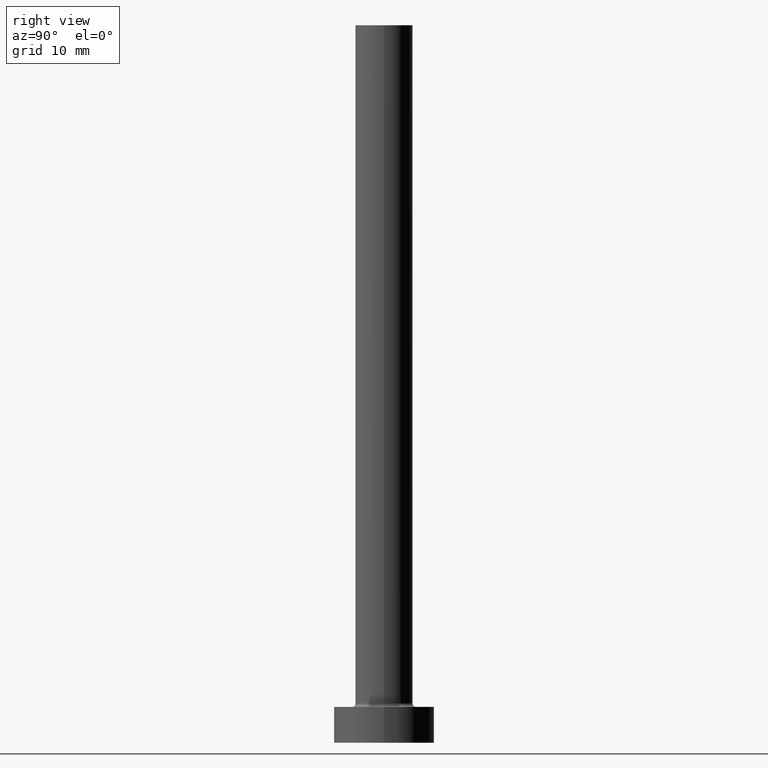
[diagram: clean part render]
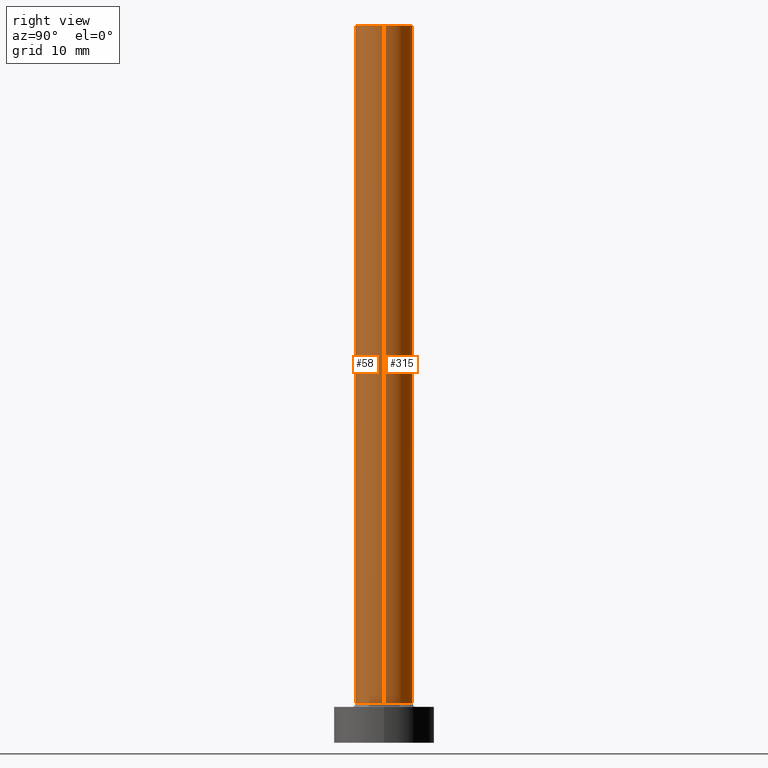
[diagram: same view with one multi-face feature highlighted, each face labeled with its STEP entity id]
A machine part, right view. The highlighted faces form ONE feature: a constant-radius fillet chain: 2 tangent blend faces with common blend radius 4 mm. The faces share edges in the B-rep.
Their STEP definitions:
[1] entity #58 (Cylinder):
#10 = VERTEX_POINT ( 'NONE', #49 ) ;
#14 = CARTESIAN_POINT ( 'NONE',  ( 0.000000000000000000, 0.000000000000000000, 5.500000000000005329 ) ) ;
#22 = ORIENTED_EDGE ( 'NONE', *, *, #360, .T. ) ;
#45 = DIRECTION ( 'NONE',  ( 1.000000000000000000, 0.000000000000000000, 0.000000000000000000 ) ) ;
#49 = CARTESIAN_POINT ( 'NONE',  ( -4.000000000000000000, 0.000000000000000000, 5.500000000000005329 ) ) ;
#58 = ADVANCED_FACE ( 'NONE', ( #283 ), #61, .T. ) ;
#61 = CYLINDRICAL_SURFACE ( 'NONE', #346, 4.000000000000000000 ) ;
#67 = CARTESIAN_POINT ( 'NONE',  ( 4.000000000000000000, 4.898587196589412829E-16, 100.0000000000000000 ) ) ;
#76 = ORIENTED_EDGE ( 'NONE', *, *, #289, .F. ) ;
#85 = CARTESIAN_POINT ( 'NONE',  ( -4.000000000000000000, 0.000000000000000000, 100.0000000000000000 ) ) ;
#89 = VERTEX_POINT ( 'NONE', #67 ) ;
#92 = ORIENTED_EDGE ( 'NONE', *, *, #369, .F. ) ;
#100 = DIRECTION ( 'NONE',  ( -0.000000000000000000, -0.000000000000000000, -1.000000000000000000 ) ) ;
#102 = VECTOR ( 'NONE', #274, 1000.000000000000000 ) ;
#123 = CARTESIAN_POINT ( 'NONE',  ( 4.000000000000000000, 4.898587196589412829E-16, 100.0000000000000000 ) ) ;
#134 = CARTESIAN_POINT ( 'NONE',  ( 0.000000000000000000, 0.000000000000000000, 100.0000000000000000 ) ) ;
#146 = AXIS2_PLACEMENT_3D ( 'NONE', #411, #332, #405 ) ;
#156 = DIRECTION ( 'NONE',  ( -0.000000000000000000, -0.000000000000000000, -1.000000000000000000 ) ) ;
#180 = VECTOR ( 'NONE', #156, 1000.000000000000000 ) ;
#188 = CIRCLE ( 'NONE', #146, 4.000000000000000000 ) ;
#192 = DIRECTION ( 'NONE',  ( 0.000000000000000000, 0.000000000000000000, 1.000000000000000000 ) ) ;
#215 = VERTEX_POINT ( 'NONE', #85 ) ;
#251 = EDGE_LOOP ( 'NONE', ( #76, #92, #22, #275 ) ) ;
#261 = CARTESIAN_POINT ( 'NONE',  ( -4.000000000000000000, 0.000000000000000000, 100.0000000000000000 ) ) ;
#274 = DIRECTION ( 'NONE',  ( -0.000000000000000000, -0.000000000000000000, -1.000000000000000000 ) ) ;
#275 = ORIENTED_EDGE ( 'NONE', *, *, #310, .T. ) ;
#280 = AXIS2_PLACEMENT_3D ( 'NONE', #14, #192, #45 ) ;
#282 = CARTESIAN_POINT ( 'NONE',  ( 4.000000000000000000, 4.898587196589412829E-16, 5.500000000000005329 ) ) ;
#283 = FACE_OUTER_BOUND ( 'NONE', #251, .T. ) ;
#289 = EDGE_CURVE ( 'NONE', #89, #448, #450, .T. ) ;
#310 = EDGE_CURVE ( 'NONE', #10, #448, #312, .T. ) ;
#312 = CIRCLE ( 'NONE', #280, 4.000000000000000000 ) ;
#332 = DIRECTION ( 'NONE',  ( 0.000000000000000000, 0.000000000000000000, 1.000000000000000000 ) ) ;
#346 = AXIS2_PLACEMENT_3D ( 'NONE', #134, #100, #349 ) ;
#349 = DIRECTION ( 'NONE',  ( -1.000000000000000000, 0.000000000000000000, 0.000000000000000000 ) ) ;
#360 = EDGE_CURVE ( 'NONE', #215, #10, #436, .T. ) ;
#369 = EDGE_CURVE ( 'NONE', #215, #89, #188, .T. ) ;
#405 = DIRECTION ( 'NONE',  ( 1.000000000000000000, 0.000000000000000000, 0.000000000000000000 ) ) ;
#411 = CARTESIAN_POINT ( 'NONE',  ( 0.000000000000000000, 0.000000000000000000, 100.0000000000000000 ) ) ;
#436 = LINE ( 'NONE', #261, #180 ) ;
#448 = VERTEX_POINT ( 'NONE', #282 ) ;
#450 = LINE ( 'NONE', #123, #102 ) ;
[2] entity #315 (Cylinder):
#10 = VERTEX_POINT ( 'NONE', #49 ) ;
#20 = DIRECTION ( 'NONE',  ( 1.000000000000000000, 0.000000000000000000, 0.000000000000000000 ) ) ;
#24 = DIRECTION ( 'NONE',  ( 0.000000000000000000, 0.000000000000000000, 1.000000000000000000 ) ) ;
#26 = AXIS2_PLACEMENT_3D ( 'NONE', #50, #24, #20 ) ;
#49 = CARTESIAN_POINT ( 'NONE',  ( -4.000000000000000000, 0.000000000000000000, 5.500000000000005329 ) ) ;
#50 = CARTESIAN_POINT ( 'NONE',  ( 0.000000000000000000, 0.000000000000000000, 5.500000000000005329 ) ) ;
#67 = CARTESIAN_POINT ( 'NONE',  ( 4.000000000000000000, 4.898587196589412829E-16, 100.0000000000000000 ) ) ;
#85 = CARTESIAN_POINT ( 'NONE',  ( -4.000000000000000000, 0.000000000000000000, 100.0000000000000000 ) ) ;
#89 = VERTEX_POINT ( 'NONE', #67 ) ;
#102 = VECTOR ( 'NONE', #274, 1000.000000000000000 ) ;
#104 = EDGE_LOOP ( 'NONE', ( #222, #311, #416, #201 ) ) ;
#123 = CARTESIAN_POINT ( 'NONE',  ( 4.000000000000000000, 4.898587196589412829E-16, 100.0000000000000000 ) ) ;
#128 = CARTESIAN_POINT ( 'NONE',  ( 0.000000000000000000, 0.000000000000000000, 100.0000000000000000 ) ) ;
#154 = DIRECTION ( 'NONE',  ( -0.000000000000000000, -0.000000000000000000, -1.000000000000000000 ) ) ;
#156 = DIRECTION ( 'NONE',  ( -0.000000000000000000, -0.000000000000000000, -1.000000000000000000 ) ) ;
#163 = DIRECTION ( 'NONE',  ( 1.000000000000000000, 0.000000000000000000, 0.000000000000000000 ) ) ;
#166 = CIRCLE ( 'NONE', #423, 4.000000000000000000 ) ;
#180 = VECTOR ( 'NONE', #156, 1000.000000000000000 ) ;
#184 = DIRECTION ( 'NONE',  ( -1.000000000000000000, 0.000000000000000000, 0.000000000000000000 ) ) ;
#187 = CYLINDRICAL_SURFACE ( 'NONE', #371, 4.000000000000000000 ) ;
#201 = ORIENTED_EDGE ( 'NONE', *, *, #360, .F. ) ;
#215 = VERTEX_POINT ( 'NONE', #85 ) ;
#222 = ORIENTED_EDGE ( 'NONE', *, *, #302, .F. ) ;
#248 = CIRCLE ( 'NONE', #26, 4.000000000000000000 ) ;
#261 = CARTESIAN_POINT ( 'NONE',  ( -4.000000000000000000, 0.000000000000000000, 100.0000000000000000 ) ) ;
#273 = FACE_OUTER_BOUND ( 'NONE', #104, .T. ) ;
#274 = DIRECTION ( 'NONE',  ( -0.000000000000000000, -0.000000000000000000, -1.000000000000000000 ) ) ;
#282 = CARTESIAN_POINT ( 'NONE',  ( 4.000000000000000000, 4.898587196589412829E-16, 5.500000000000005329 ) ) ;
#289 = EDGE_CURVE ( 'NONE', #89, #448, #450, .T. ) ;
#302 = EDGE_CURVE ( 'NONE', #89, #215, #166, .T. ) ;
#311 = ORIENTED_EDGE ( 'NONE', *, *, #289, .T. ) ;
#315 = ADVANCED_FACE ( 'NONE', ( #273 ), #187, .T. ) ;
#322 = EDGE_CURVE ( 'NONE', #448, #10, #248, .T. ) ;
#343 = DIRECTION ( 'NONE',  ( 0.000000000000000000, 0.000000000000000000, 1.000000000000000000 ) ) ;
#360 = EDGE_CURVE ( 'NONE', #215, #10, #436, .T. ) ;
#371 = AXIS2_PLACEMENT_3D ( 'NONE', #372, #154, #184 ) ;
#372 = CARTESIAN_POINT ( 'NONE',  ( 0.000000000000000000, 0.000000000000000000, 100.0000000000000000 ) ) ;
#416 = ORIENTED_EDGE ( 'NONE', *, *, #322, .T. ) ;
#423 = AXIS2_PLACEMENT_3D ( 'NONE', #128, #343, #163 ) ;
#436 = LINE ( 'NONE', #261, #180 ) ;
#448 = VERTEX_POINT ( 'NONE', #282 ) ;
#450 = LINE ( 'NONE', #123, #102 ) ;